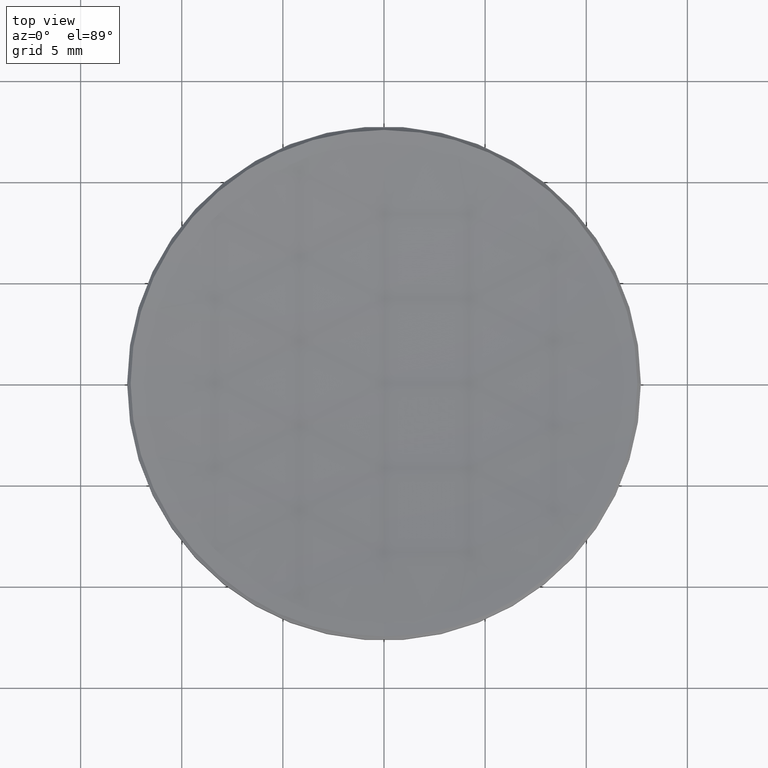
[diagram: clean part render]
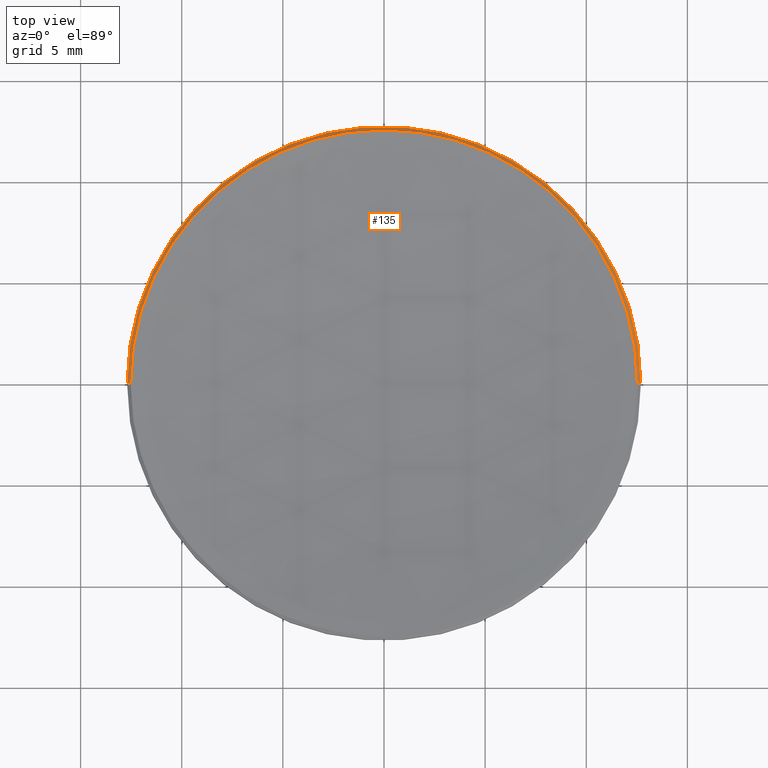
[diagram: same view with one face highlighted and labeled with its STEP entity id]
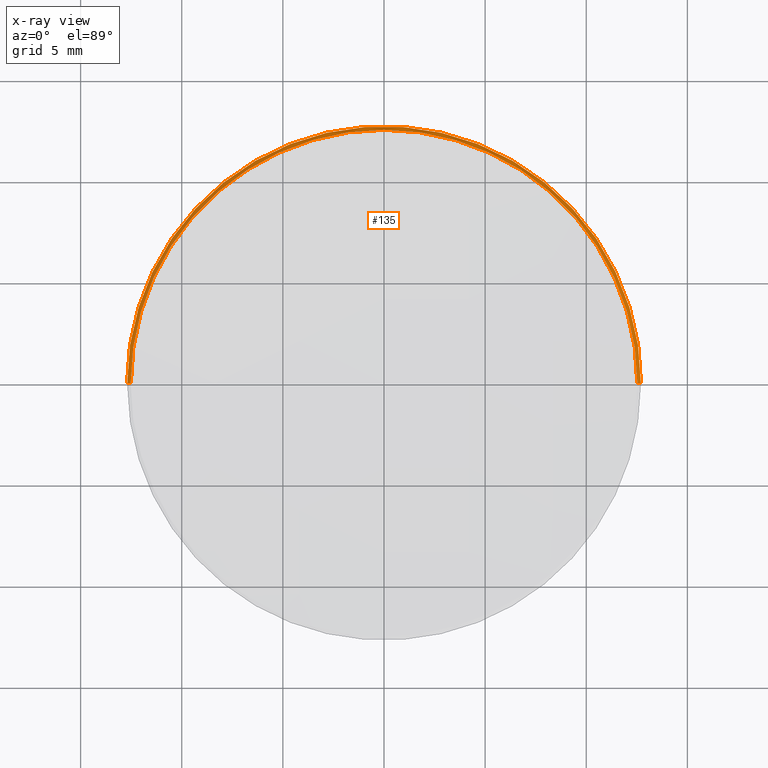
[diagram: x-ray of the same camera — body ghosted, the highlighted face saturated]
A machine part, top view. The second image highlights one B-rep face of the part: STEP entity #135.
The next image is the same camera in x-ray: the body ghosted, the highlighted face saturated — about 0% of this face is hidden behind the body in this view.
In plain terms, the highlighted conical surface has half-angle 45 deg.
Its self-contained STEP definition (entity closure, byte-faithful):
#4 = DIRECTION ( 'NONE',  ( 0.000000000000000000, 0.000000000000000000, -1.000000000000000000 ) ) ;
#10 = CARTESIAN_POINT ( 'NONE',  ( 0.000000000000000000, 0.000000000000000000, 5.799999999999999822 ) ) ;
#11 = EDGE_CURVE ( 'NONE', #24, #77, #90, .T. ) ;
#13 = CARTESIAN_POINT ( 'NONE',  ( 0.000000000000000000, 12.52687420083781511, 5.973125799162120941 ) ) ;
#24 = VERTEX_POINT ( 'NONE', #143 ) ;
#31 = ORIENTED_EDGE ( 'NONE', *, *, #172, .F. ) ;
#33 = CARTESIAN_POINT ( 'NONE',  ( -12.52687420083785419, 0.000000000000000000, 5.973125799162120941 ) ) ;
#56 = ORIENTED_EDGE ( 'NONE', *, *, #177, .F. ) ;
#61 = CIRCLE ( 'NONE', #256, 12.52687420083785419 ) ;
#63 = AXIS2_PLACEMENT_3D ( 'NONE', #10, #4, #186 ) ;
#70 = DIRECTION ( 'NONE',  ( -1.000000000000000000, 0.000000000000000000, 0.000000000000000000 ) ) ;
#77 = VERTEX_POINT ( 'NONE', #290 ) ;
#79 = VECTOR ( 'NONE', #191, 1000.000000000000000 ) ;
#80 = ORIENTED_EDGE ( 'NONE', *, *, #289, .F. ) ;
#89 = CARTESIAN_POINT ( 'NONE',  ( 12.52687420083785597, 1.534099639337763779E-15, 5.973125799162135152 ) ) ;
#90 = LINE ( 'NONE', #89, #79 ) ;
#101 = VECTOR ( 'NONE', #285, 1000.000000000000000 ) ;
#109 = VERTEX_POINT ( 'NONE', #324 ) ;
#112 = AXIS2_PLACEMENT_3D ( 'NONE', #326, #274, #277 ) ;
#113 = FACE_OUTER_BOUND ( 'NONE', #281, .T. ) ;
#123 = DIRECTION ( 'NONE',  ( 0.000000000000000000, 0.000000000000000000, -1.000000000000000000 ) ) ;
#127 = DIRECTION ( 'NONE',  ( -0.000000000000000000, -0.000000000000000000, 1.000000000000000000 ) ) ;
#130 = LINE ( 'NONE', #179, #101 ) ;
#131 = VERTEX_POINT ( 'NONE', #13 ) ;
#135 = ADVANCED_FACE ( 'NONE', ( #113 ), #144, .T. ) ;
#143 = CARTESIAN_POINT ( 'NONE',  ( 12.52687420083785419, 1.544700537127451106E-15, 5.973125799162120941 ) ) ;
#144 = CONICAL_SURFACE ( 'NONE', #216, 12.52687420083785597, 0.7853981633974733700 ) ;
#157 = CIRCLE ( 'NONE', #112, 12.52687420083785419 ) ;
#172 = EDGE_CURVE ( 'NONE', #131, #265, #61, .T. ) ;
#177 = EDGE_CURVE ( 'NONE', #24, #131, #157, .T. ) ;
#179 = CARTESIAN_POINT ( 'NONE',  ( -12.52687420083785597, 0.000000000000000000, 5.973125799162135152 ) ) ;
#186 = DIRECTION ( 'NONE',  ( 1.000000000000000000, 0.000000000000000000, 0.000000000000000000 ) ) ;
#191 = DIRECTION ( 'NONE',  ( 0.7071067811865652253, 8.659560562355149795E-17, -0.7071067811865298092 ) ) ;
#203 = CIRCLE ( 'NONE', #63, 12.69999999999999929 ) ;
#215 = CARTESIAN_POINT ( 'NONE',  ( 0.000000000000000000, 0.000000000000000000, 5.973125799162135152 ) ) ;
#216 = AXIS2_PLACEMENT_3D ( 'NONE', #215, #123, #70 ) ;
#256 = AXIS2_PLACEMENT_3D ( 'NONE', #279, #127, #325 ) ;
#259 = ORIENTED_EDGE ( 'NONE', *, *, #322, .F. ) ;
#265 = VERTEX_POINT ( 'NONE', #33 ) ;
#274 = DIRECTION ( 'NONE',  ( -0.000000000000000000, -0.000000000000000000, 1.000000000000000000 ) ) ;
#277 = DIRECTION ( 'NONE',  ( 1.000000000000000000, 0.000000000000000000, 0.000000000000000000 ) ) ;
#279 = CARTESIAN_POINT ( 'NONE',  ( 0.000000000000000000, 0.000000000000000000, 5.973125799162120941 ) ) ;
#281 = EDGE_LOOP ( 'NONE', ( #56, #283, #80, #259, #31 ) ) ;
#283 = ORIENTED_EDGE ( 'NONE', *, *, #11, .T. ) ;
#285 = DIRECTION ( 'NONE',  ( -0.7071067811865652253, 0.000000000000000000, -0.7071067811865298092 ) ) ;
#289 = EDGE_CURVE ( 'NONE', #109, #77, #203, .T. ) ;
#290 = CARTESIAN_POINT ( 'NONE',  ( 12.69999999999999929, 1.555301434917138433E-15, 5.799999999999999822 ) ) ;
#322 = EDGE_CURVE ( 'NONE', #265, #109, #130, .T. ) ;
#324 = CARTESIAN_POINT ( 'NONE',  ( -12.69999999999999929, 0.000000000000000000, 5.799999999999999822 ) ) ;
#325 = DIRECTION ( 'NONE',  ( 1.000000000000000000, 0.000000000000000000, 0.000000000000000000 ) ) ;
#326 = CARTESIAN_POINT ( 'NONE',  ( 0.000000000000000000, 0.000000000000000000, 5.973125799162120941 ) ) ;